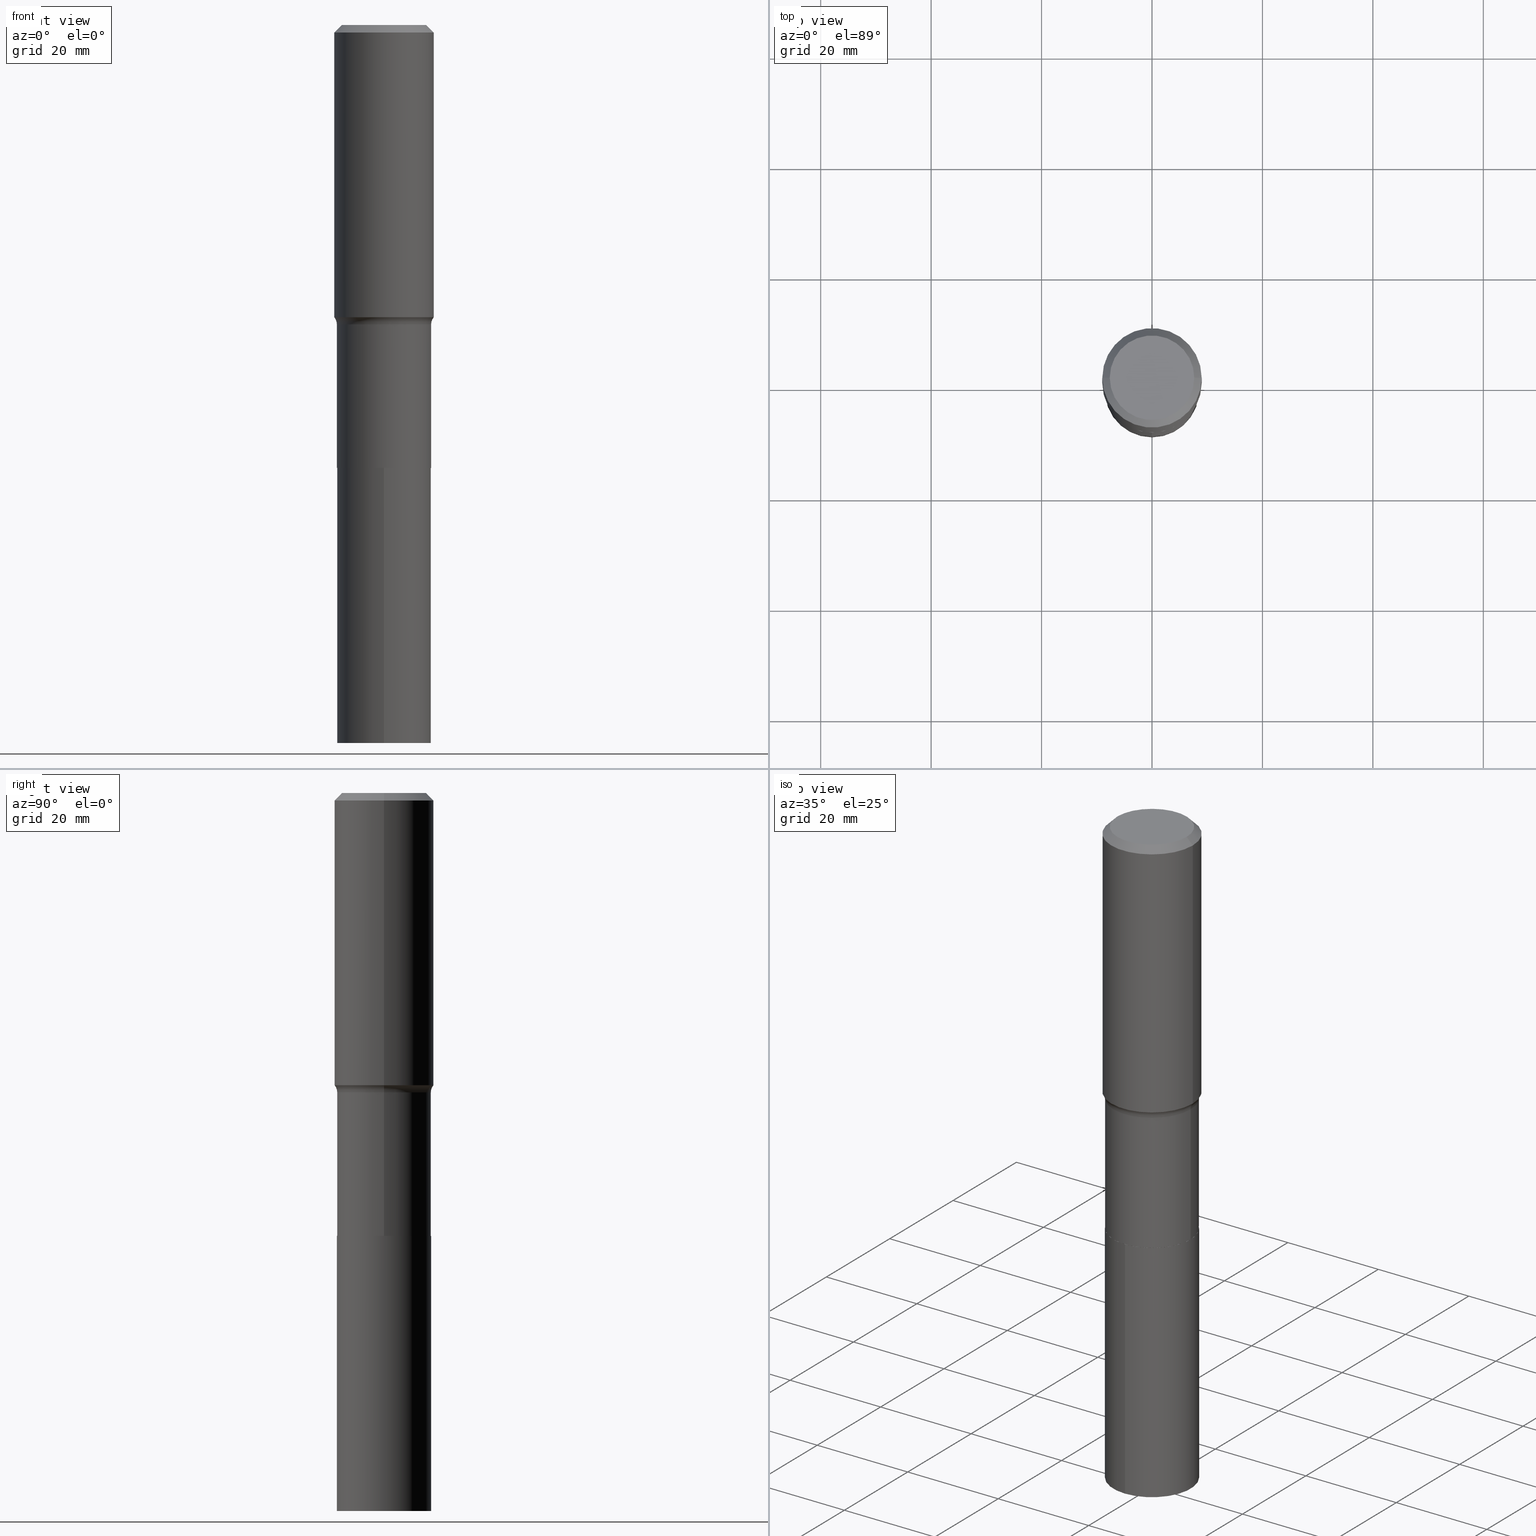
[diagram: canonical four-view strip — front | top / right | iso, engineering-drawing reading convention]
A machine part, canonical four-view strip (front | top / right | iso — engineering-drawing reading convention). The complete STEP part file that produces these views, byte-faithful:
ISO-10303-21;
HEADER;
FILE_DESCRIPTION (( 'STEP AP203' ),
    '1' );
FILE_NAME ('58856.STEP',
    '2024-04-19T14:46:02',
    ( '' ),
    ( '' ),
    'SwSTEP 2.0',
    'SolidWorks 2023',
    '' );
FILE_SCHEMA (( 'CONFIG_CONTROL_DESIGN' ));
ENDSEC;

DATA;
#1 = ADVANCED_FACE ( 'NONE', ( #140 ), #217, .T. ) ;
#2 = DIRECTION ( 'NONE',  ( -2.445468806185136597E-29, 3.491481338843145583E-15, 1.000000000000000000 ) ) ;
#3 = EDGE_LOOP ( 'NONE', ( #129, #450 ) ) ;
#4 = CARTESIAN_POINT ( 'NONE',  ( 0.4159499999999999864, -1.035643194727653009E-14, -2.134300000000000086 ) ) ;
#5 = AXIS2_PLACEMENT_3D ( 'NONE', #325, #139, #431 ) ;
#6 = FACE_OUTER_BOUND ( 'NONE', #354, .T. ) ;
#7 = LOCAL_TIME ( 10, 46, 2.000000000000000000, #251 ) ;
#8 = LINE ( 'NONE', #434, #277 ) ;
#9 = CARTESIAN_POINT ( 'NONE',  ( -2.345926311568623595E-15, -0.3359500000000110176, -3.157099999999998907 ) ) ;
#10 = VERTEX_POINT ( 'NONE', #69 ) ;
#11 = CARTESIAN_POINT ( 'NONE',  ( 0.000000000000000000, 0.000000000000000000, 0.000000000000000000 ) ) ;
#12 = AXIS2_PLACEMENT_3D ( 'NONE', #156, #226, #114 ) ;
#13 = ORIENTED_EDGE ( 'NONE', *, *, #402, .F. ) ;
#14 = AXIS2_PLACEMENT_3D ( 'NONE', #4, #108, #190 ) ;
#15 = VERTEX_POINT ( 'NONE', #395 ) ;
#16 = EDGE_CURVE ( 'NONE', #173, #46, #160, .T. ) ;
#17 = ORIENTED_EDGE ( 'NONE', *, *, #402, .T. ) ;
#18 = ORIENTED_EDGE ( 'NONE', *, *, #351, .T. ) ;
#19 = CALENDAR_DATE ( 2024, 19, 4 ) ;
#20 = AXIS2_PLACEMENT_3D ( 'NONE', #209, #418, #353 ) ;
#21 = FACE_OUTER_BOUND ( 'NONE', #319, .T. ) ;
#22 = VERTEX_POINT ( 'NONE', #180 ) ;
#23 = LINE ( 'NONE', #250, #128 ) ;
#24 = DIRECTION ( 'NONE',  ( -6.982962677686265133E-15, -1.000000000000000000, 3.252684022817994463E-15 ) ) ;
#25 = AXIS2_PLACEMENT_3D ( 'NONE', #357, #322, #459 ) ;
#26 = AXIS2_PLACEMENT_3D ( 'NONE', #259, #155, #70 ) ;
#27 = VERTEX_POINT ( 'NONE', #66 ) ;
#28 = ADVANCED_FACE ( 'NONE', ( #463 ), #252, .T. ) ;
#29 = CARTESIAN_POINT ( 'NONE',  ( -0.3354500000000000259, -8.639440127754439394E-15, -3.157100000000000239 ) ) ;
#30 = PRODUCT_DEFINITION ( 'UNKNOWN', '', #367, #461 ) ;
#31 = DIRECTION ( 'NONE',  ( -2.445468806185136877E-29, 3.491481338843145188E-15, 1.000000000000000000 ) ) ;
#32 = APPROVAL_ROLE ( '' ) ;
#33 = AXIS2_PLACEMENT_3D ( 'NONE', #342, #334, #399 ) ;
#34 = AXIS2_PLACEMENT_3D ( 'NONE', #442, #370, #229 ) ;
#35 = DIRECTION ( 'NONE',  ( -2.445143667233141105E-29, 3.491946956328162536E-15, 1.000000000000000000 ) ) ;
#36 = DIRECTION ( 'NONE',  ( 1.000000000000000000, -6.982962677686265922E-15, 0.000000000000000000 ) ) ;
#37 = ADVANCED_FACE ( 'NONE', ( #391 ), #63, .F. ) ;
#38 = CC_DESIGN_DATE_AND_TIME_ASSIGNMENT ( #420, #355, ( #331 ) ) ;
#39 = CARTESIAN_POINT ( 'NONE',  ( 7.720589568007094249E-29, -1.102295573486169565E-14, -3.157100000000000239 ) ) ;
#40 = EDGE_LOOP ( 'NONE', ( #197, #309 ) ) ;
#41 = FACE_OUTER_BOUND ( 'NONE', #244, .T. ) ;
#42 = AXIS2_PLACEMENT_3D ( 'NONE', #408, #223, #368 ) ;
#43 = CARTESIAN_POINT ( 'NONE',  ( 5.219364073040937564E-29, -7.451868621492925956E-15, -2.134300000000000086 ) ) ;
#44 = VECTOR ( 'NONE', #407, 39.37007874015748143 ) ;
#45 = DIRECTION ( 'NONE',  ( -2.445143667233141385E-29, 3.491946956328162536E-15, 1.000000000000000000 ) ) ;
#46 = VERTEX_POINT ( 'NONE', #296 ) ;
#47 = ORIENTED_EDGE ( 'NONE', *, *, #88, .F. ) ;
#48 = DIRECTION ( 'NONE',  ( 0.000000000000000000, 0.000000000000000000, 1.000000000000000000 ) ) ;
#49 = DIRECTION ( 'NONE',  ( -1.000000000000000000, 6.982962677686266711E-15, 0.000000000000000000 ) ) ;
#50 = CLOSED_SHELL ( 'NONE', ( #338, #1, #115, #424, #28, #188, #237, #290, #310, #169, #37, #206 ) ) ;
#51 = VERTEX_POINT ( 'NONE', #216 ) ;
#52 = CC_DESIGN_APPROVAL ( #257, ( #30 ) ) ;
#53 = EDGE_CURVE ( 'NONE', #173, #22, #23, .T. ) ;
#54 = PERSON_AND_ORGANIZATION ( #430, #101 ) ;
#55 = APPROVAL_ROLE ( '' ) ;
#56 = FACE_OUTER_BOUND ( 'NONE', #382, .T. ) ;
#57 = ORIENTED_EDGE ( 'NONE', *, *, #462, .F. ) ;
#58 = ORIENTED_EDGE ( 'NONE', *, *, #305, .T. ) ;
#59 = ORIENTED_EDGE ( 'NONE', *, *, #64, .T. ) ;
#60 = LOCAL_TIME ( 10, 46, 2.000000000000000000, #192 ) ;
#61 = DIRECTION ( 'NONE',  ( -2.445143667233141665E-29, 3.491946956328162536E-15, 1.000000000000000000 ) ) ;
#62 = FACE_OUTER_BOUND ( 'NONE', #40, .T. ) ;
#63 = PLANE ( 'NONE',  #337 ) ;
#64 = EDGE_CURVE ( 'NONE', #112, #270, #292, .T. ) ;
#65 = AXIS2_PLACEMENT_3D ( 'NONE', #126, #444, #162 ) ;
#66 = CARTESIAN_POINT ( 'NONE',  ( 2.387068320786157736E-15, 0.3359499999999820963, -5.118100000000003647 ) ) ;
#67 = DATE_AND_TIME ( #326, #161 ) ;
#68 = CARTESIAN_POINT ( 'NONE',  ( -0.3359499999999999154, -6.849470987056543290E-15, -2.134300000000000086 ) ) ;
#69 = CARTESIAN_POINT ( 'NONE',  ( -0.3359500000000000819, -6.849470987056542502E-15, -3.156600000000000072 ) ) ;
#70 = DIRECTION ( 'NONE',  ( 1.000000000000000000, -6.982962677686266711E-15, 4.876239486148337140E-29 ) ) ;
#71 = CARTESIAN_POINT ( 'NONE',  ( 1.251551629945129188E-28, -1.787066371622123093E-14, -5.118100000000002758 ) ) ;
#72 = AXIS2_PLACEMENT_3D ( 'NONE', #261, #433, #200 ) ;
#73 = CC_DESIGN_SECURITY_CLASSIFICATION ( #331, ( #367 ) ) ;
#74 = CARTESIAN_POINT ( 'NONE',  ( 5.094538759496551369E-29, -7.273651155887488989E-15, -2.083256489148962221 ) ) ;
#75 = DIRECTION ( 'NONE',  ( 1.000000000000000000, -6.982962677686264344E-15, 4.883557194083111780E-29 ) ) ;
#76 = DIRECTION ( 'NONE',  ( -2.445468806185136877E-29, 3.491481338843145188E-15, 1.000000000000000000 ) ) ;
#77 = ORIENTED_EDGE ( 'NONE', *, *, #384, .T. ) ;
#78 = CARTESIAN_POINT ( 'NONE',  ( 7.720589568007094249E-29, -1.102295573486169565E-14, -3.157100000000000239 ) ) ;
#79 = EDGE_CURVE ( 'NONE', #239, #27, #392, .T. ) ;
#80 = LINE ( 'NONE', #400, #172 ) ;
#81 = CARTESIAN_POINT ( 'NONE',  ( 2.387068320786182191E-15, 0.3359499999999890352, -3.157100000000001128 ) ) ;
#82 = VECTOR ( 'NONE', #159, 39.37007874015748854 ) ;
#83 = CC_DESIGN_DATE_AND_TIME_ASSIGNMENT ( #132, #151, ( #30 ) ) ;
#84 = PERSON_AND_ORGANIZATION ( #430, #101 ) ;
#85 = PRODUCT_DEFINITION_SHAPE ( 'NONE', 'NONE',  #30 ) ;
#86 = LENGTH_MEASURE_WITH_UNIT ( LENGTH_MEASURE( 0.02539999999999999897 ), #168 );
#87 = APPROVAL_DATE_TIME ( #145, #220 ) ;
#88 = EDGE_CURVE ( 'NONE', #15, #112, #249, .T. ) ;
#89 = ORIENTED_EDGE ( 'NONE', *, *, #79, .T. ) ;
#90 = MANIFOLD_SOLID_BREP ( 'Body-Move/Copy2[2]', #50 ) ;
#91 = CC_DESIGN_PERSON_AND_ORGANIZATION_ASSIGNMENT ( #54, #179, ( #30 ) ) ;
#92 = CARTESIAN_POINT ( 'NONE',  ( 0.000000000000000000, 0.000000000000000000, 0.000000000000000000 ) ) ;
#93 = ORIENTED_EDGE ( 'NONE', *, *, #462, .T. ) ;
#94 = CIRCLE ( 'NONE', #14, 0.07999999999999996003 ) ;
#95 = UNCERTAINTY_MEASURE_WITH_UNIT (LENGTH_MEASURE( 1.000000000000000082E-05 ), #447, 'distance_accuracy_value', 'NONE');
#96 = ORIENTED_EDGE ( 'NONE', *, *, #88, .T. ) ;
#97 = CC_DESIGN_PERSON_AND_ORGANIZATION_ASSIGNMENT ( #84, #376, ( #331 ) ) ;
#98 = VERTEX_POINT ( 'NONE', #105 ) ;
#99 = ORIENTED_EDGE ( 'NONE', *, *, #389, .T. ) ;
#100 = AXIS2_PLACEMENT_3D ( 'NONE', #371, #196, #339 ) ;
#101 = ORGANIZATION ( 'UNSPECIFIED', 'UNSPECIFIED', '' ) ;
#102 = DIRECTION ( 'NONE',  ( -6.982962677686265133E-15, -1.000000000000000000, 3.252684022817994463E-15 ) ) ;
#103 = EDGE_CURVE ( 'NONE', #413, #10, #390, .T. ) ;
#104 = DIRECTION ( 'NONE',  ( -2.445468806185136597E-29, 3.491481338843145583E-15, 1.000000000000000000 ) ) ;
#105 = CARTESIAN_POINT ( 'NONE',  ( -0.3543500000000002759, -4.755842971721572810E-15, -2.083256489148962221 ) ) ;
#106 = AXIS2_PLACEMENT_3D ( 'NONE', #71, #147, #236 ) ;
#107 = FACE_OUTER_BOUND ( 'NONE', #448, .T. ) ;
#108 = DIRECTION ( 'NONE',  ( -6.982962677686266711E-15, -1.000000000000000000, 3.491481338843145583E-15 ) ) ;
#109 = DIRECTION ( 'NONE',  ( -2.445468806185136597E-29, 3.491481338843145583E-15, 1.000000000000000000 ) ) ;
#110 = LINE ( 'NONE', #191, #329 ) ;
#111 = AXIS2_PLACEMENT_3D ( 'NONE', #386, #439, #374 ) ;
#112 = VERTEX_POINT ( 'NONE', #327 ) ;
#113 = DIRECTION ( 'NONE',  ( -2.445143667233141665E-29, 3.491946956328162536E-15, 1.000000000000000000 ) ) ;
#114 = DIRECTION ( 'NONE',  ( -6.982962677686265133E-15, -1.000000000000000000, 3.252684022817994463E-15 ) ) ;
#115 = ADVANCED_FACE ( 'NONE', ( #107 ), #388, .T. ) ;
#116 = ORIENTED_EDGE ( 'NONE', *, *, #263, .T. ) ;
#117 = PERSON_AND_ORGANIZATION ( #430, #101 ) ;
#118 = DIRECTION ( 'NONE',  ( -2.445468806185136597E-29, 3.491481338843145583E-15, 1.000000000000000000 ) ) ;
#119 = DIRECTION ( 'NONE',  ( 1.000000000000000000, -6.982962677686265922E-15, 4.876176775795935793E-29 ) ) ;
#120 = CIRCLE ( 'NONE', #20, 0.3359499999999999154 ) ;
#121 = EDGE_CURVE ( 'NONE', #239, #278, #330, .T. ) ;
#122 = ORIENTED_EDGE ( 'NONE', *, *, #212, .F. ) ;
#123 = PERSON_AND_ORGANIZATION ( #430, #101 ) ;
#124 = ADVANCED_FACE ( 'NONE', ( #174 ), #456, .T. ) ;
#125 = PERSON_AND_ORGANIZATION ( #430, #101 ) ;
#126 = CARTESIAN_POINT ( 'NONE',  ( 7.720589568007094249E-29, -1.102295573486169565E-14, -3.157100000000000239 ) ) ;
#127 = EDGE_LOOP ( 'NONE', ( #380, #228, #245, #204 ) ) ;
#128 = VECTOR ( 'NONE', #221, 39.37007874015748854 ) ;
#129 = ORIENTED_EDGE ( 'NONE', *, *, #351, .F. ) ;
#130 = AXIS2_PLACEMENT_3D ( 'NONE', #199, #35, #185 ) ;
#131 = ORIENTED_EDGE ( 'NONE', *, *, #53, .F. ) ;
#132 = DATE_AND_TIME ( #361, #276 ) ;
#133 = ORIENTED_EDGE ( 'NONE', *, *, #384, .F. ) ;
#134 = CARTESIAN_POINT ( 'NONE',  ( 7.720589568007094249E-29, -1.102295573486169565E-14, -3.157100000000000239 ) ) ;
#135 = VECTOR ( 'NONE', #31, 39.37007874015748143 ) ;
#136 = CIRCLE ( 'NONE', #194, 0.3543499999999999983 ) ;
#137 = ADVANCED_FACE ( 'NONE', ( #62 ), #215, .F. ) ;
#138 = VERTEX_POINT ( 'NONE', #426 ) ;
#139 = DIRECTION ( 'NONE',  ( 2.445468806185136597E-29, -3.491481338843145583E-15, -1.000000000000000000 ) ) ;
#140 = FACE_OUTER_BOUND ( 'NONE', #383, .T. ) ;
#141 = SHAPE_DEFINITION_REPRESENTATION ( #85, #150 ) ;
#142 = TOROIDAL_SURFACE ( 'NONE', #458, 0.4159499999999999864, 0.08000000000000000167 ) ;
#143 = CC_DESIGN_PERSON_AND_ORGANIZATION_ASSIGNMENT ( #311, #449, ( #324 ) ) ;
#144 = CARTESIAN_POINT ( 'NONE',  ( 1.251551629945129188E-28, -1.787066371622123093E-14, -5.118100000000002758 ) ) ;
#145 = DATE_AND_TIME ( #295, #60 ) ;
#146 = CARTESIAN_POINT ( 'NONE',  ( 5.219364073040937564E-29, -7.451868621492925956E-15, -2.134300000000000086 ) ) ;
#147 = DIRECTION ( 'NONE',  ( -2.445143667233141385E-29, 3.491946956328162536E-15, 1.000000000000000000 ) ) ;
#148 = PLANE ( 'NONE',  #42 ) ;
#149 = ORIENTED_EDGE ( 'NONE', *, *, #345, .F. ) ;
#150 = ADVANCED_BREP_SHAPE_REPRESENTATION ( '58856', ( #246, #90, #294 ), #203 ) ;
#151 = DATE_TIME_ROLE ( 'creation_date' ) ;
#152 = CARTESIAN_POINT ( 'NONE',  ( -0.3354500000000000259, -8.636790900580327404E-15, -3.157100000000000239 ) ) ;
#153 = EDGE_CURVE ( 'NONE', #98, #340, #254, .T. ) ;
#154 = DIRECTION ( 'NONE',  ( 1.000000000000000000, -6.982962677686265922E-15, 0.000000000000000000 ) ) ;
#155 = DIRECTION ( 'NONE',  ( -2.445468806185136597E-29, 3.491481338843145583E-15, 1.000000000000000000 ) ) ;
#156 = CARTESIAN_POINT ( 'NONE',  ( 7.720589568007094249E-29, -1.102295573486169565E-14, -3.157100000000000239 ) ) ;
#157 = ORIENTED_EDGE ( 'NONE', *, *, #121, .F. ) ;
#158 = DIRECTION ( 'NONE',  ( -2.445468806185136877E-29, 3.491481338843145188E-15, 1.000000000000000000 ) ) ;
#159 = DIRECTION ( 'NONE',  ( -0.7071067811865444641, 2.468850131082225506E-15, -0.7071067811865503483 ) ) ;
#160 = CIRCLE ( 'NONE', #352, 0.3011975000000000069 ) ;
#161 = LOCAL_TIME ( 10, 46, 2.000000000000000000, #464 ) ;
#162 = DIRECTION ( 'NONE',  ( 1.000000000000000000, -6.982962677686266711E-15, 0.000000000000000000 ) ) ;
#163 = ORIENTED_EDGE ( 'NONE', *, *, #416, .T. ) ;
#164 = APPLICATION_PROTOCOL_DEFINITION ( 'international standard', 'config_control_design', 1994, #260 ) ;
#165 = ORIENTED_EDGE ( 'NONE', *, *, #279, .F. ) ;
#166 = APPLICATION_PROTOCOL_DEFINITION ( 'international standard', 'config_control_design', 1994, #208 ) ;
#167 = ORIENTED_EDGE ( 'NONE', *, *, #175, .T. ) ;
#168 =( LENGTH_UNIT ( ) NAMED_UNIT ( * ) SI_UNIT ( $, .METRE. ) );
#169 = ADVANCED_FACE ( 'NONE', ( #264 ), #148, .F. ) ;
#170 = CONICAL_SURFACE ( 'NONE', #275, 0.3354500000000000259, 0.7853981633973118326 ) ;
#171 = ORIENTED_EDGE ( 'NONE', *, *, #372, .F. ) ;
#172 = VECTOR ( 'NONE', #158, 39.37007874015748143 ) ;
#173 = VERTEX_POINT ( 'NONE', #336 ) ;
#174 = FACE_OUTER_BOUND ( 'NONE', #453, .T. ) ;
#175 = EDGE_CURVE ( 'NONE', #27, #239, #316, .T. ) ;
#176 = PRODUCT_RELATED_PRODUCT_CATEGORY ( 'detail', '', ( #324 ) ) ;
#177 = DIRECTION ( 'NONE',  ( -2.445468806185136597E-29, 3.491481338843145583E-15, 1.000000000000000000 ) ) ;
#178 = AXIS2_PLACEMENT_3D ( 'NONE', #302, #375, #232 ) ;
#179 = PERSON_AND_ORGANIZATION_ROLE ( 'creator' ) ;
#180 = CARTESIAN_POINT ( 'NONE',  ( 0.3543499999999999983, -2.659993786700990565E-15, -0.05315250000000043551 ) ) ;
#181 = DIRECTION ( 'NONE',  ( -0.7071067811864509833, 7.493145998870005484E-15, 0.7071067811866440511 ) ) ;
#182 = CC_DESIGN_PERSON_AND_ORGANIZATION_ASSIGNMENT ( #117, #406, ( #367 ) ) ;
#183 = DIRECTION ( 'NONE',  ( 1.000000000000000000, -6.982962677686265922E-15, 4.876176775795935793E-29 ) ) ;
#184 = LOCAL_TIME ( 10, 46, 2.000000000000000000, #451 ) ;
#185 = DIRECTION ( 'NONE',  ( -6.982962677686265922E-15, -1.000000000000000000, 3.491946956328162536E-15 ) ) ;
#186 = DIRECTION ( 'NONE',  ( 1.000000000000000000, -6.982962677686266711E-15, 0.000000000000000000 ) ) ;
#187 = CARTESIAN_POINT ( 'NONE',  ( -2.345926311568575475E-15, -0.3359500000000179010, -5.118100000000000982 ) ) ;
#188 = ADVANCED_FACE ( 'NONE', ( #41 ), #405, .T. ) ;
#189 = CALENDAR_DATE ( 2024, 19, 4 ) ;
#190 = DIRECTION ( 'NONE',  ( 1.000000000000000000, -6.982962677686262766E-15, 0.000000000000000000 ) ) ;
#191 = CARTESIAN_POINT ( 'NONE',  ( -0.3359500000000000264, 2.387068320786056762E-15, -1.652516243571135534E-29 ) ) ;
#192 = COORDINATED_UNIVERSAL_TIME_OFFSET ( 5, 0, .BEHIND. ) ;
#193 = AXIS2_PLACEMENT_3D ( 'NONE', #258, #177, #183 ) ;
#194 = AXIS2_PLACEMENT_3D ( 'NONE', #195, #332, #335 ) ;
#195 = CARTESIAN_POINT ( 'NONE',  ( 1.299827807207565248E-30, -1.855809618628617968E-16, -0.05315250000000043551 ) ) ;
#196 = DIRECTION ( 'NONE',  ( -2.445468806185136597E-29, 3.491481338843145583E-15, 1.000000000000000000 ) ) ;
#197 = ORIENTED_EDGE ( 'NONE', *, *, #279, .T. ) ;
#198 = SECURITY_CLASSIFICATION_LEVEL ( 'unclassified' ) ;
#199 = CARTESIAN_POINT ( 'NONE',  ( -1.073370706288500892E-28, -5.116487483470266589E-14, -5.118100000000000982 ) ) ;
#200 = DIRECTION ( 'NONE',  ( -6.982962677686265133E-15, -1.000000000000000000, 3.252684022817994463E-15 ) ) ;
#201 = ORIENTED_EDGE ( 'NONE', *, *, #345, .T. ) ;
#202 = DIRECTION ( 'NONE',  ( 1.000000000000000000, 0.000000000000000000, 0.000000000000000000 ) ) ;
#203 =( GEOMETRIC_REPRESENTATION_CONTEXT ( 3 ) GLOBAL_UNCERTAINTY_ASSIGNED_CONTEXT ( ( #95 ) ) GLOBAL_UNIT_ASSIGNED_CONTEXT ( ( #447, #379, #343 ) ) REPRESENTATION_CONTEXT ( 'NONE', 'WORKASPACE' ) );
#204 = ORIENTED_EDGE ( 'NONE', *, *, #64, .F. ) ;
#205 = ORIENTED_EDGE ( 'NONE', *, *, #299, .T. ) ;
#206 = ADVANCED_FACE ( 'NONE', ( #437 ), #170, .T. ) ;
#207 = ORIENTED_EDGE ( 'NONE', *, *, #243, .T. ) ;
#208 = APPLICATION_CONTEXT ( 'configuration controlled 3d designs of mechanical parts and assemblies' ) ;
#209 = CARTESIAN_POINT ( 'NONE',  ( 5.219364073040937564E-29, -7.451868621492925956E-15, -2.134300000000000086 ) ) ;
#210 = EDGE_LOOP ( 'NONE', ( #441, #207, #96, #149 ) ) ;
#211 = AXIS2_PLACEMENT_3D ( 'NONE', #328, #341, #284 ) ;
#212 = EDGE_CURVE ( 'NONE', #219, #278, #436, .T. ) ;
#213 = ORIENTED_EDGE ( 'NONE', *, *, #153, .F. ) ;
#214 = EDGE_CURVE ( 'NONE', #10, #340, #110, .T. ) ;
#215 = PLANE ( 'NONE',  #25 ) ;
#216 = CARTESIAN_POINT ( 'NONE',  ( 0.3543500000000002759, -9.748063980725620445E-15, -2.083256489148962221 ) ) ;
#217 = CONICAL_SURFACE ( 'NONE', #5, 0.3543499999999999983, 0.7853981633974441712 ) ;
#218 = APPROVAL_PERSON_ORGANIZATION ( #467, #220, #231 ) ;
#219 = VERTEX_POINT ( 'NONE', #81 ) ;
#220 = APPROVAL ( #404, 'UNSPECIFIED' ) ;
#221 = DIRECTION ( 'NONE',  ( 0.7071067811865444641, -7.319954787623245001E-15, -0.7071067811865503483 ) ) ;
#222 = PERSON_AND_ORGANIZATION ( #430, #101 ) ;
#223 = DIRECTION ( 'NONE',  ( 2.438088387897960049E-29, -3.491481338843145188E-15, -1.000000000000000000 ) ) ;
#224 = AXIS2_PLACEMENT_3D ( 'NONE', #74, #269, #154 ) ;
#225 = APPROVAL_PERSON_ORGANIZATION ( #222, #267, #32 ) ;
#226 = DIRECTION ( 'NONE',  ( -2.445143667233141385E-29, 3.491946956328162536E-15, 1.000000000000000000 ) ) ;
#227 = ADVANCED_FACE ( 'NONE', ( #6 ), #230, .T. ) ;
#228 = ORIENTED_EDGE ( 'NONE', *, *, #214, .T. ) ;
#229 = DIRECTION ( 'NONE',  ( 1.000000000000000000, -6.982962677686269866E-15, 0.000000000000000000 ) ) ;
#230 = CYLINDRICAL_SURFACE ( 'NONE', #72, 0.3359500000000000264 ) ;
#231 = APPROVAL_ROLE ( '' ) ;
#232 = DIRECTION ( 'NONE',  ( -1.000000000000000000, 7.105427357601001859E-15, 0.000000000000000000 ) ) ;
#233 = TOROIDAL_SURFACE ( 'NONE', #387, 0.4159499999999999864, 0.08000000000000000167 ) ;
#234 = CONICAL_SURFACE ( 'NONE', #241, 0.3543499999999999983, 0.7853981633974441712 ) ;
#235 = FACE_OUTER_BOUND ( 'NONE', #369, .T. ) ;
#236 = DIRECTION ( 'NONE',  ( -6.982962677686265133E-15, -1.000000000000000000, 3.252684022817994463E-15 ) ) ;
#237 = ADVANCED_FACE ( 'NONE', ( #298 ), #233, .F. ) ;
#238 = ORIENTED_EDGE ( 'NONE', *, *, #372, .T. ) ;
#239 = VERTEX_POINT ( 'NONE', #187 ) ;
#240 = APPROVAL_STATUS ( 'not_yet_approved' ) ;
#241 = AXIS2_PLACEMENT_3D ( 'NONE', #313, #411, #49 ) ;
#242 = ORIENTED_EDGE ( 'NONE', *, *, #435, .F. ) ;
#243 = EDGE_CURVE ( 'NONE', #413, #15, #247, .T. ) ;
#244 = EDGE_LOOP ( 'NONE', ( #285, #201, #59, #57 ) ) ;
#245 = ORIENTED_EDGE ( 'NONE', *, *, #323, .F. ) ;
#246 = MANIFOLD_SOLID_BREP ( 'Body-Move/Copy2[1]', #301 ) ;
#247 = CIRCLE ( 'NONE', #33, 0.3354500000000000259 ) ;
#248 = CIRCLE ( 'NONE', #26, 0.3011975000000000069 ) ;
#249 = LINE ( 'NONE', #291, #457 ) ;
#250 = CARTESIAN_POINT ( 'NONE',  ( 0.3543499999999999983, -2.616598427373204262E-15, -0.05315250000000043551 ) ) ;
#251 = COORDINATED_UNIVERSAL_TIME_OFFSET ( 5, 0, .BEHIND. ) ;
#252 = CYLINDRICAL_SURFACE ( 'NONE', #281, 0.3359500000000000264 ) ;
#253 = DIRECTION ( 'NONE',  ( -2.438088387897960049E-29, 3.491481338843145188E-15, 1.000000000000000000 ) ) ;
#254 = CIRCLE ( 'NONE', #178, 0.07999999999999996003 ) ;
#255 = AXIS2_PLACEMENT_3D ( 'NONE', #306, #396, #36 ) ;
#256 = EDGE_CURVE ( 'NONE', #22, #138, #307, .T. ) ;
#257 = APPROVAL ( #240, 'UNSPECIFIED' ) ;
#258 = CARTESIAN_POINT ( 'NONE',  ( 0.000000000000000000, 0.000000000000000000, 0.000000000000000000 ) ) ;
#259 = CARTESIAN_POINT ( 'NONE',  ( -1.002970424325033577E-46, 1.431975951230896212E-32, 4.101342130344485961E-18 ) ) ;
#260 = APPLICATION_CONTEXT ( 'configuration controlled 3d designs of mechanical parts and assemblies' ) ;
#261 = CARTESIAN_POINT ( 'NONE',  ( 7.720589568007094249E-29, -1.102295573486169565E-14, -3.157100000000000239 ) ) ;
#262 = DIRECTION ( 'NONE',  ( 1.000000000000000000, -6.982962677686267499E-15, 0.000000000000000000 ) ) ;
#263 = EDGE_CURVE ( 'NONE', #98, #51, #422, .T. ) ;
#264 = FACE_OUTER_BOUND ( 'NONE', #312, .T. ) ;
#265 = VECTOR ( 'NONE', #61, 39.37007874015748143 ) ;
#266 = CIRCLE ( 'NONE', #34, 0.3359500000000000819 ) ;
#267 = APPROVAL ( #293, 'UNSPECIFIED' ) ;
#268 = LINE ( 'NONE', #271, #44 ) ;
#269 = DIRECTION ( 'NONE',  ( -2.445468806185136597E-29, 3.491481338843145583E-15, 1.000000000000000000 ) ) ;
#270 = VERTEX_POINT ( 'NONE', #440 ) ;
#271 = CARTESIAN_POINT ( 'NONE',  ( 0.3543500000000001648, -2.474412824838129483E-15, 1.727873240503290590E-29 ) ) ;
#272 = DIRECTION ( 'NONE',  ( 1.000000000000000000, -6.982962677686265922E-15, 4.876176775795935232E-29 ) ) ;
#273 = CARTESIAN_POINT ( 'NONE',  ( -0.3543499999999999983, 2.288831862975266823E-15, -0.05315250000000043551 ) ) ;
#274 = CC_DESIGN_PERSON_AND_ORGANIZATION_ASSIGNMENT ( #123, #315, ( #367 ) ) ;
#275 = AXIS2_PLACEMENT_3D ( 'NONE', #39, #109, #186 ) ;
#276 = LOCAL_TIME ( 10, 46, 2.000000000000000000, #427 ) ;
#277 = VECTOR ( 'NONE', #113, 39.37007874015748143 ) ;
#278 = VERTEX_POINT ( 'NONE', #9 ) ;
#279 = EDGE_CURVE ( 'NONE', #278, #219, #398, .T. ) ;
#280 = ORIENTED_EDGE ( 'NONE', *, *, #103, .T. ) ;
#281 = AXIS2_PLACEMENT_3D ( 'NONE', #360, #104, #429 ) ;
#282 = ORIENTED_EDGE ( 'NONE', *, *, #16, .F. ) ;
#283 = ORIENTED_EDGE ( 'NONE', *, *, #256, .F. ) ;
#284 = DIRECTION ( 'NONE',  ( 1.000000000000000000, -6.982962677686269866E-15, 0.000000000000000000 ) ) ;
#285 = ORIENTED_EDGE ( 'NONE', *, *, #214, .F. ) ;
#286 = AXIS2_PLACEMENT_3D ( 'NONE', #144, #289, #24 ) ;
#287 = CC_DESIGN_APPROVAL ( #267, ( #331 ) ) ;
#288 = CARTESIAN_POINT ( 'NONE',  ( -2.345926311568623595E-15, -0.3359500000000110176, -3.157099999999998907 ) ) ;
#289 = DIRECTION ( 'NONE',  ( -2.445143667233141385E-29, 3.491946956328162536E-15, 1.000000000000000000 ) ) ;
#290 = ADVANCED_FACE ( 'NONE', ( #304 ), #443, .T. ) ;
#291 = CARTESIAN_POINT ( 'NONE',  ( 0.3354500000000000259, -1.336539056509155355E-14, -3.157100000000000239 ) ) ;
#292 = LINE ( 'NONE', #364, #135 ) ;
#293 = APPROVAL_STATUS ( 'not_yet_approved' ) ;
#294 = AXIS2_PLACEMENT_3D ( 'NONE', #92, #48, #202 ) ;
#295 = CALENDAR_DATE ( 2024, 19, 4 ) ;
#296 = CARTESIAN_POINT ( 'NONE',  ( -0.3011975000000000069, 2.196041382043837860E-15, 4.101342130329452923E-18 ) ) ;
#297 = PLANE ( 'NONE',  #130 ) ;
#298 = FACE_OUTER_BOUND ( 'NONE', #385, .T. ) ;
#299 = EDGE_CURVE ( 'NONE', #46, #138, #468, .T. ) ;
#300 = DIRECTION ( 'NONE',  ( -2.445468806185136597E-29, 3.491481338843145583E-15, 1.000000000000000000 ) ) ;
#301 = CLOSED_SHELL ( 'NONE', ( #227, #452, #124, #137 ) ) ;
#302 = CARTESIAN_POINT ( 'NONE',  ( -0.4159499999999999864, -4.496366112098789724E-15, -2.134300000000000086 ) ) ;
#303 = FACE_OUTER_BOUND ( 'NONE', #350, .T. ) ;
#304 = FACE_OUTER_BOUND ( 'NONE', #349, .T. ) ;
#305 = EDGE_CURVE ( 'NONE', #51, #98, #393, .T. ) ;
#306 = CARTESIAN_POINT ( 'NONE',  ( 5.094538759496551369E-29, -7.273651155887488989E-15, -2.083256489148962221 ) ) ;
#307 = CIRCLE ( 'NONE', #100, 0.3543499999999999983 ) ;
#308 = APPROVAL_PERSON_ORGANIZATION ( #125, #257, #55 ) ;
#309 = ORIENTED_EDGE ( 'NONE', *, *, #212, .T. ) ;
#310 = ADVANCED_FACE ( 'NONE', ( #56 ), #234, .T. ) ;
#311 = PERSON_AND_ORGANIZATION ( #430, #101 ) ;
#312 = EDGE_LOOP ( 'NONE', ( #163, #415 ) ) ;
#313 = CARTESIAN_POINT ( 'NONE',  ( 1.299827807207565248E-30, -1.855809618628617968E-16, -0.05315250000000043551 ) ) ;
#314 = ORIENTED_EDGE ( 'NONE', *, *, #323, .T. ) ;
#315 = PERSON_AND_ORGANIZATION_ROLE ( 'creator' ) ;
#316 = CIRCLE ( 'NONE', #106, 0.3359500000000000264 ) ;
#317 = CC_DESIGN_APPROVAL ( #220, ( #367 ) ) ;
#318 = ORIENTED_EDGE ( 'NONE', *, *, #153, .T. ) ;
#319 = EDGE_LOOP ( 'NONE', ( #18, #280, #242, #47 ) ) ;
#320 = CARTESIAN_POINT ( 'NONE',  ( -1.002970424325033577E-46, 1.431975951230896212E-32, 4.101342130344485961E-18 ) ) ;
#321 = CONICAL_SURFACE ( 'NONE', #65, 0.3354500000000000259, 0.7853981633973118326 ) ;
#322 = DIRECTION ( 'NONE',  ( 2.445143667233141105E-29, -3.491946956328162536E-15, -1.000000000000000000 ) ) ;
#323 = EDGE_CURVE ( 'NONE', #270, #340, #120, .T. ) ;
#324 = PRODUCT ( '58856', '58856', '', ( #347 ) ) ;
#325 = CARTESIAN_POINT ( 'NONE',  ( 1.299827807207565248E-30, -1.855809618628617968E-16, -0.05315250000000043551 ) ) ;
#326 = CALENDAR_DATE ( 2024, 19, 4 ) ;
#327 = CARTESIAN_POINT ( 'NONE',  ( 0.3359500000000000819, -1.336713630576097584E-14, -3.156600000000000072 ) ) ;
#328 = CARTESIAN_POINT ( 'NONE',  ( 7.719366833604001448E-29, -1.102120999419227336E-14, -3.156600000000000072 ) ) ;
#329 = VECTOR ( 'NONE', #76, 39.37007874015748143 ) ;
#330 = LINE ( 'NONE', #288, #265 ) ;
#331 = SECURITY_CLASSIFICATION ( '', '', #198 ) ;
#332 = DIRECTION ( 'NONE',  ( -2.445468806185136597E-29, 3.491481338843145583E-15, 1.000000000000000000 ) ) ;
#333 = DIRECTION ( 'NONE',  ( -2.445468806185136597E-29, 3.491481338843145583E-15, 1.000000000000000000 ) ) ;
#334 = DIRECTION ( 'NONE',  ( -2.445468806185136597E-29, 3.491481338843145583E-15, 1.000000000000000000 ) ) ;
#335 = DIRECTION ( 'NONE',  ( 1.000000000000000000, -6.982962677686266711E-15, 0.000000000000000000 ) ) ;
#336 = CARTESIAN_POINT ( 'NONE',  ( 0.3011975000000000069, -2.341481636528497322E-15, 4.101342130360026675E-18 ) ) ;
#337 = AXIS2_PLACEMENT_3D ( 'NONE', #362, #253, #356 ) ;
#338 = ADVANCED_FACE ( 'NONE', ( #21 ), #321, .T. ) ;
#339 = DIRECTION ( 'NONE',  ( 1.000000000000000000, -6.982962677686266711E-15, 0.000000000000000000 ) ) ;
#340 = VERTEX_POINT ( 'NONE', #68 ) ;
#341 = DIRECTION ( 'NONE',  ( -2.445468806185136597E-29, 3.491481338843145583E-15, 1.000000000000000000 ) ) ;
#342 = CARTESIAN_POINT ( 'NONE',  ( 7.720589568007094249E-29, -1.102295573486169565E-14, -3.157100000000000239 ) ) ;
#343 =( NAMED_UNIT ( * ) SI_UNIT ( $, .STERADIAN. ) SOLID_ANGLE_UNIT ( ) );
#344 = ORIENTED_EDGE ( 'NONE', *, *, #389, .F. ) ;
#345 = EDGE_CURVE ( 'NONE', #10, #112, #359, .T. ) ;
#346 = CIRCLE ( 'NONE', #111, 0.3354500000000000259 ) ;
#347 = MECHANICAL_CONTEXT ( 'NONE', #260, 'mechanical' ) ;
#348 = ORIENTED_EDGE ( 'NONE', *, *, #299, .F. ) ;
#349 = EDGE_LOOP ( 'NONE', ( #13, #116, #99, #438 ) ) ;
#350 = EDGE_LOOP ( 'NONE', ( #454, #318, #93, #133 ) ) ;
#351 = EDGE_CURVE ( 'NONE', #15, #413, #346, .T. ) ;
#352 = AXIS2_PLACEMENT_3D ( 'NONE', #320, #466, #394 ) ;
#353 = DIRECTION ( 'NONE',  ( 1.000000000000000000, -6.982962677686267499E-15, 0.000000000000000000 ) ) ;
#354 = EDGE_LOOP ( 'NONE', ( #89, #238, #165, #157 ) ) ;
#355 = DATE_TIME_ROLE ( 'classification_date' ) ;
#356 = DIRECTION ( 'NONE',  ( 1.000000000000000000, -6.982962677686265922E-15, 4.876176775795935793E-29 ) ) ;
#357 = CARTESIAN_POINT ( 'NONE',  ( 7.720589568007094249E-29, -1.102295573486169565E-14, -3.157100000000000239 ) ) ;
#358 = EDGE_CURVE ( 'NONE', #138, #22, #136, .T. ) ;
#359 = CIRCLE ( 'NONE', #211, 0.3359500000000000819 ) ;
#360 = CARTESIAN_POINT ( 'NONE',  ( 0.000000000000000000, 0.000000000000000000, 0.000000000000000000 ) ) ;
#361 = CALENDAR_DATE ( 2024, 19, 4 ) ;
#362 = CARTESIAN_POINT ( 'NONE',  ( 7.720589568007094249E-29, -1.102295573486169565E-14, -3.157100000000000239 ) ) ;
#363 = APPROVAL_DATE_TIME ( #67, #267 ) ;
#364 = CARTESIAN_POINT ( 'NONE',  ( 0.3359500000000000264, -2.345926311568701298E-15, 1.638151587828644602E-29 ) ) ;
#365 = CARTESIAN_POINT ( 'NONE',  ( 5.219364073040937564E-29, -7.451868621492925956E-15, -2.134300000000000086 ) ) ;
#366 = DIRECTION ( 'NONE',  ( 1.000000000000000000, -6.982962677686264344E-15, 4.883557194083111780E-29 ) ) ;
#367 = PRODUCT_DEFINITION_FORMATION_WITH_SPECIFIED_SOURCE ( 'ANY', '', #324, .NOT_KNOWN. ) ;
#368 = DIRECTION ( 'NONE',  ( -1.000000000000000000, 6.982962677686265922E-15, -4.876176775795935793E-29 ) ) ;
#369 = EDGE_LOOP ( 'NONE', ( #403, #377 ) ) ;
#370 = DIRECTION ( 'NONE',  ( -2.445468806185136597E-29, 3.491481338843145583E-15, 1.000000000000000000 ) ) ;
#371 = CARTESIAN_POINT ( 'NONE',  ( 1.299827807207565248E-30, -1.855809618628617968E-16, -0.05315250000000043551 ) ) ;
#372 = EDGE_CURVE ( 'NONE', #27, #219, #8, .T. ) ;
#373 = DIRECTION ( 'NONE',  ( -6.982962677686265133E-15, -1.000000000000000000, 3.252684022817994463E-15 ) ) ;
#374 = DIRECTION ( 'NONE',  ( 1.000000000000000000, -6.982962677686266711E-15, 0.000000000000000000 ) ) ;
#375 = DIRECTION ( 'NONE',  ( 7.105427357601001859E-15, 1.000000000000000000, -3.491481338843145583E-15 ) ) ;
#376 = PERSON_AND_ORGANIZATION_ROLE ( 'classification_officer' ) ;
#377 = ORIENTED_EDGE ( 'NONE', *, *, #175, .F. ) ;
#378 = APPROVAL_DATE_TIME ( #417, #257 ) ;
#379 =( NAMED_UNIT ( * ) PLANE_ANGLE_UNIT ( ) SI_UNIT ( $, .RADIAN. ) );
#380 = ORIENTED_EDGE ( 'NONE', *, *, #435, .T. ) ;
#381 = AXIS2_PLACEMENT_3D ( 'NONE', #78, #45, #373 ) ;
#382 = EDGE_LOOP ( 'NONE', ( #131, #455, #205, #412 ) ) ;
#383 = EDGE_LOOP ( 'NONE', ( #282, #414, #421, #348 ) ) ;
#384 = EDGE_CURVE ( 'NONE', #51, #270, #94, .T. ) ;
#385 = EDGE_LOOP ( 'NONE', ( #213, #460, #77, #314 ) ) ;
#386 = CARTESIAN_POINT ( 'NONE',  ( 7.720589568007094249E-29, -1.102295573486169565E-14, -3.157100000000000239 ) ) ;
#387 = AXIS2_PLACEMENT_3D ( 'NONE', #43, #333, #366 ) ;
#388 = CYLINDRICAL_SURFACE ( 'NONE', #193, 0.3543500000000001648 ) ;
#389 = EDGE_CURVE ( 'NONE', #51, #22, #268, .T. ) ;
#390 = LINE ( 'NONE', #29, #409 ) ;
#391 = FACE_OUTER_BOUND ( 'NONE', #3, .T. ) ;
#392 = CIRCLE ( 'NONE', #286, 0.3359500000000000264 ) ;
#393 = CIRCLE ( 'NONE', #255, 0.3543500000000002759 ) ;
#394 = DIRECTION ( 'NONE',  ( 1.000000000000000000, -6.982962677686266711E-15, 4.876239486148337140E-29 ) ) ;
#395 = CARTESIAN_POINT ( 'NONE',  ( 0.3354500000000000259, -1.336539056509155355E-14, -3.157100000000000239 ) ) ;
#396 = DIRECTION ( 'NONE',  ( -2.445468806185136597E-29, 3.491481338843145583E-15, 1.000000000000000000 ) ) ;
#397 = DIMENSIONAL_EXPONENTS ( 1.000000000000000000, 0.000000000000000000, 0.000000000000000000, 0.000000000000000000, 0.000000000000000000, 0.000000000000000000, 0.000000000000000000 ) ;
#398 = CIRCLE ( 'NONE', #12, 0.3359500000000000264 ) ;
#399 = DIRECTION ( 'NONE',  ( 1.000000000000000000, -6.982962677686266711E-15, 0.000000000000000000 ) ) ;
#400 = CARTESIAN_POINT ( 'NONE',  ( -0.3543500000000001648, 2.517808184165916180E-15, -1.743024649231826627E-29 ) ) ;
#401 = CARTESIAN_POINT ( 'NONE',  ( 0.000000000000000000, 0.000000000000000000, 0.000000000000000000 ) ) ;
#402 = EDGE_CURVE ( 'NONE', #98, #138, #80, .T. ) ;
#403 = ORIENTED_EDGE ( 'NONE', *, *, #79, .F. ) ;
#404 = APPROVAL_STATUS ( 'not_yet_approved' ) ;
#405 = CYLINDRICAL_SURFACE ( 'NONE', #465, 0.3359500000000000264 ) ;
#406 = PERSON_AND_ORGANIZATION_ROLE ( 'design_supplier' ) ;
#407 = DIRECTION ( 'NONE',  ( -2.445468806185136877E-29, 3.491481338843145188E-15, 1.000000000000000000 ) ) ;
#408 = CARTESIAN_POINT ( 'NONE',  ( -5.014852121625167883E-47, 7.159879756154481060E-33, 2.050671065172242981E-18 ) ) ;
#409 = VECTOR ( 'NONE', #181, 39.37007874015748143 ) ;
#410 = AXIS2_PLACEMENT_3D ( 'NONE', #11, #2, #119 ) ;
#411 = DIRECTION ( 'NONE',  ( 2.445468806185136597E-29, -3.491481338843145583E-15, -1.000000000000000000 ) ) ;
#412 = ORIENTED_EDGE ( 'NONE', *, *, #358, .T. ) ;
#413 = VERTEX_POINT ( 'NONE', #152 ) ;
#414 = ORIENTED_EDGE ( 'NONE', *, *, #53, .T. ) ;
#415 = ORIENTED_EDGE ( 'NONE', *, *, #16, .T. ) ;
#416 = EDGE_CURVE ( 'NONE', #46, #173, #248, .T. ) ;
#417 = DATE_AND_TIME ( #189, #184 ) ;
#418 = DIRECTION ( 'NONE',  ( -2.445468806185136597E-29, 3.491481338843145583E-15, 1.000000000000000000 ) ) ;
#419 = ORIENTED_EDGE ( 'NONE', *, *, #121, .T. ) ;
#420 = DATE_AND_TIME ( #19, #7 ) ;
#421 = ORIENTED_EDGE ( 'NONE', *, *, #256, .T. ) ;
#422 = CIRCLE ( 'NONE', #224, 0.3543500000000002759 ) ;
#423 = CIRCLE ( 'NONE', #446, 0.3359499999999999154 ) ;
#424 = ADVANCED_FACE ( 'NONE', ( #303 ), #142, .F. ) ;
#425 = DIRECTION ( 'NONE',  ( -2.445143667233141385E-29, 3.491946956328162536E-15, 1.000000000000000000 ) ) ;
#426 = CARTESIAN_POINT ( 'NONE',  ( -0.3543499999999999983, -1.211807874709259447E-15, -0.05315250000000043551 ) ) ;
#427 = COORDINATED_UNIVERSAL_TIME_OFFSET ( 5, 0, .BEHIND. ) ;
#428 = DIRECTION ( 'NONE',  ( 0.7071067811864509833, -2.468850131081245741E-15, 0.7071067811866440511 ) ) ;
#429 = DIRECTION ( 'NONE',  ( 1.000000000000000000, -6.982962677686265922E-15, 4.876176775795935232E-29 ) ) ;
#430 = PERSON ( 'UNSPECIFIED', 'UNSPECIFIED', 'UNSPECIFIED', ('UNSPECIFIED'), ('UNSPECIFIED'), ('UNSPECIFIED') ) ;
#431 = DIRECTION ( 'NONE',  ( -1.000000000000000000, 6.982962677686266711E-15, 0.000000000000000000 ) ) ;
#432 = DIRECTION ( 'NONE',  ( -2.445468806185136597E-29, 3.491481338843145583E-15, 1.000000000000000000 ) ) ;
#433 = DIRECTION ( 'NONE',  ( -2.445143667233141385E-29, 3.491946956328162536E-15, 1.000000000000000000 ) ) ;
#434 = CARTESIAN_POINT ( 'NONE',  ( 2.387068320786133281E-15, 0.3359499999999890352, -3.157100000000001128 ) ) ;
#435 = EDGE_CURVE ( 'NONE', #112, #10, #266, .T. ) ;
#436 = CIRCLE ( 'NONE', #381, 0.3359500000000000264 ) ;
#437 = FACE_OUTER_BOUND ( 'NONE', #210, .T. ) ;
#438 = ORIENTED_EDGE ( 'NONE', *, *, #358, .F. ) ;
#439 = DIRECTION ( 'NONE',  ( -2.445468806185136597E-29, 3.491481338843145583E-15, 1.000000000000000000 ) ) ;
#440 = CARTESIAN_POINT ( 'NONE',  ( 0.3359499999999999154, -9.797794933061626860E-15, -2.134300000000000086 ) ) ;
#441 = ORIENTED_EDGE ( 'NONE', *, *, #103, .F. ) ;
#442 = CARTESIAN_POINT ( 'NONE',  ( 7.719366833604001448E-29, -1.102120999419227336E-14, -3.156600000000000072 ) ) ;
#443 = CYLINDRICAL_SURFACE ( 'NONE', #410, 0.3543500000000001648 ) ;
#444 = DIRECTION ( 'NONE',  ( -2.445468806185136597E-29, 3.491481338843145583E-15, 1.000000000000000000 ) ) ;
#445 = AXIS2_PLACEMENT_3D ( 'NONE', #134, #425, #102 ) ;
#446 = AXIS2_PLACEMENT_3D ( 'NONE', #146, #432, #262 ) ;
#447 =( CONVERSION_BASED_UNIT ( 'INCH', #86 ) LENGTH_UNIT ( ) NAMED_UNIT ( #397 ) );
#448 = EDGE_LOOP ( 'NONE', ( #58, #17, #283, #344 ) ) ;
#449 = PERSON_AND_ORGANIZATION_ROLE ( 'design_owner' ) ;
#450 = ORIENTED_EDGE ( 'NONE', *, *, #243, .F. ) ;
#451 = COORDINATED_UNIVERSAL_TIME_OFFSET ( 5, 0, .BEHIND. ) ;
#452 = ADVANCED_FACE ( 'NONE', ( #235 ), #297, .F. ) ;
#453 = EDGE_LOOP ( 'NONE', ( #171, #167, #419, #122 ) ) ;
#454 = ORIENTED_EDGE ( 'NONE', *, *, #263, .F. ) ;
#455 = ORIENTED_EDGE ( 'NONE', *, *, #416, .F. ) ;
#456 = CYLINDRICAL_SURFACE ( 'NONE', #445, 0.3359500000000000264 ) ;
#457 = VECTOR ( 'NONE', #428, 39.37007874015748143 ) ;
#458 = AXIS2_PLACEMENT_3D ( 'NONE', #365, #118, #75 ) ;
#459 = DIRECTION ( 'NONE',  ( 6.982962677686265922E-15, 1.000000000000000000, -3.491946956328162536E-15 ) ) ;
#460 = ORIENTED_EDGE ( 'NONE', *, *, #305, .F. ) ;
#461 = DESIGN_CONTEXT ( 'detailed design', #208, 'design' ) ;
#462 = EDGE_CURVE ( 'NONE', #340, #270, #423, .T. ) ;
#463 = FACE_OUTER_BOUND ( 'NONE', #127, .T. ) ;
#464 = COORDINATED_UNIVERSAL_TIME_OFFSET ( 5, 0, .BEHIND. ) ;
#465 = AXIS2_PLACEMENT_3D ( 'NONE', #401, #300, #272 ) ;
#466 = DIRECTION ( 'NONE',  ( -2.445468806185136597E-29, 3.491481338843145583E-15, 1.000000000000000000 ) ) ;
#467 = PERSON_AND_ORGANIZATION ( #430, #101 ) ;
#468 = LINE ( 'NONE', #273, #82 ) ;
ENDSEC;
END-ISO-10303-21;
